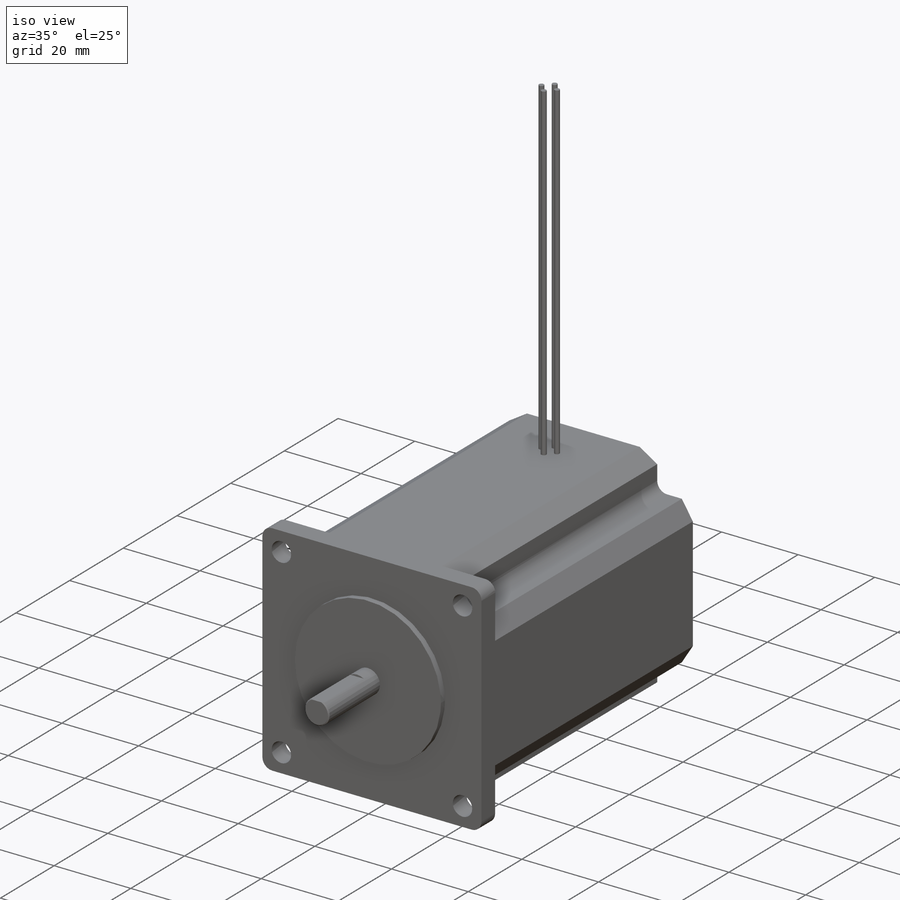
[diagram: iso view]
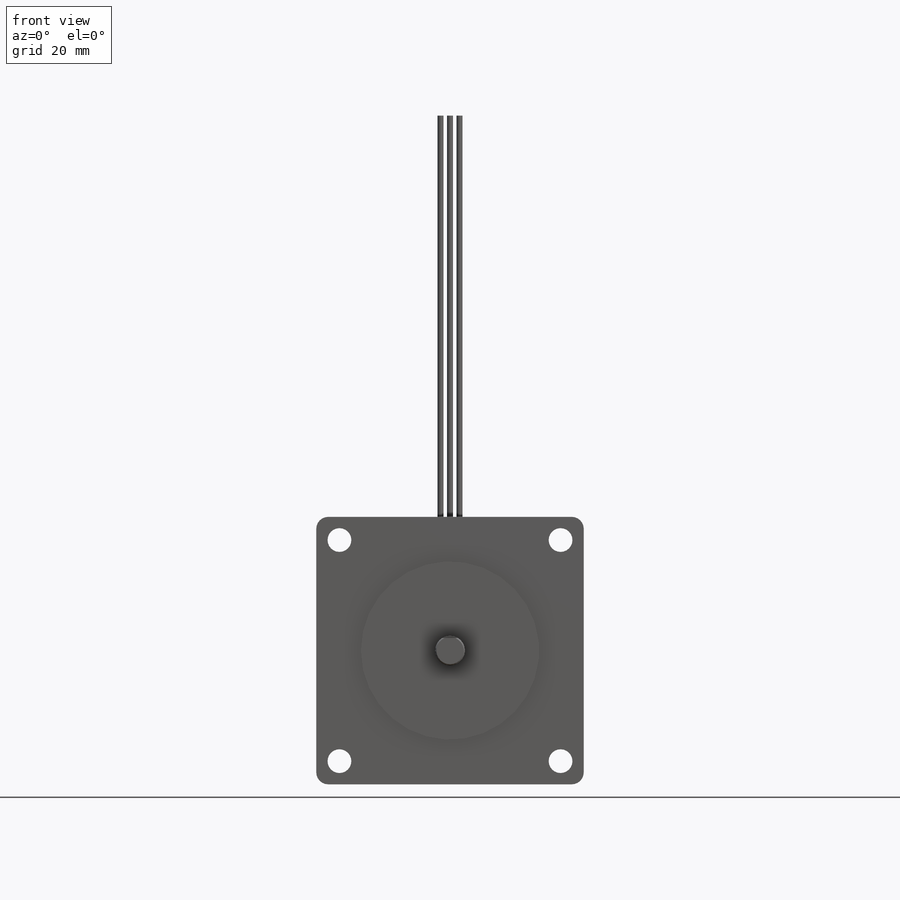
[diagram: front view]
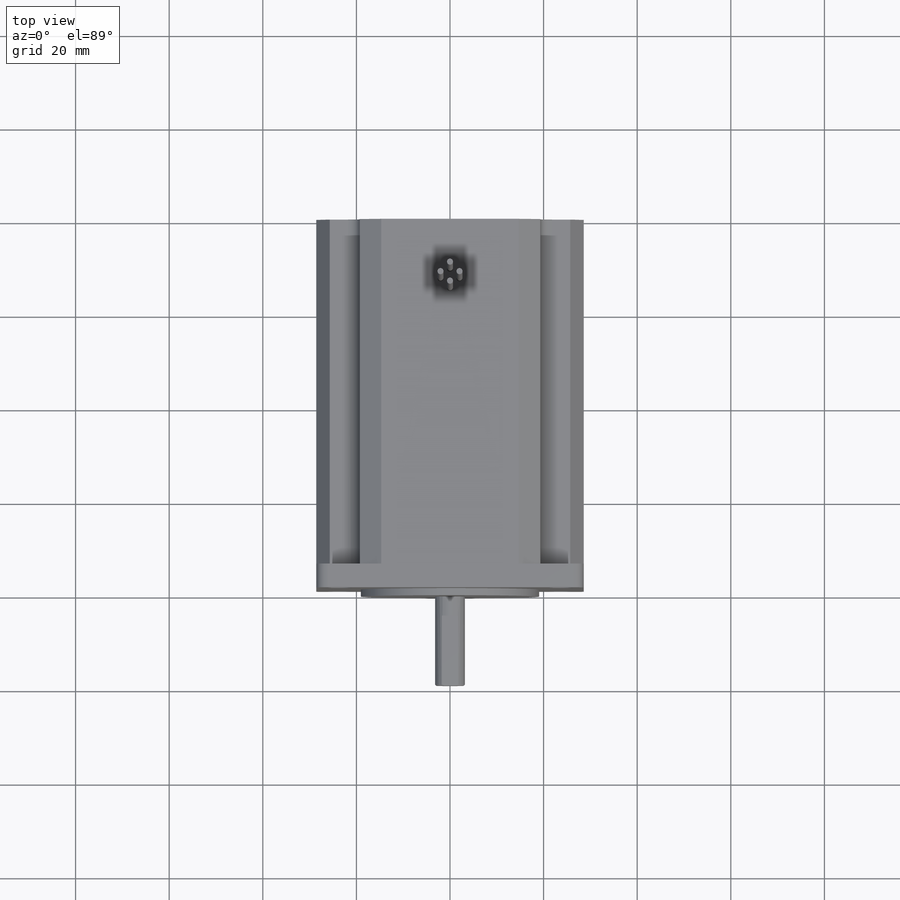
[diagram: top view]
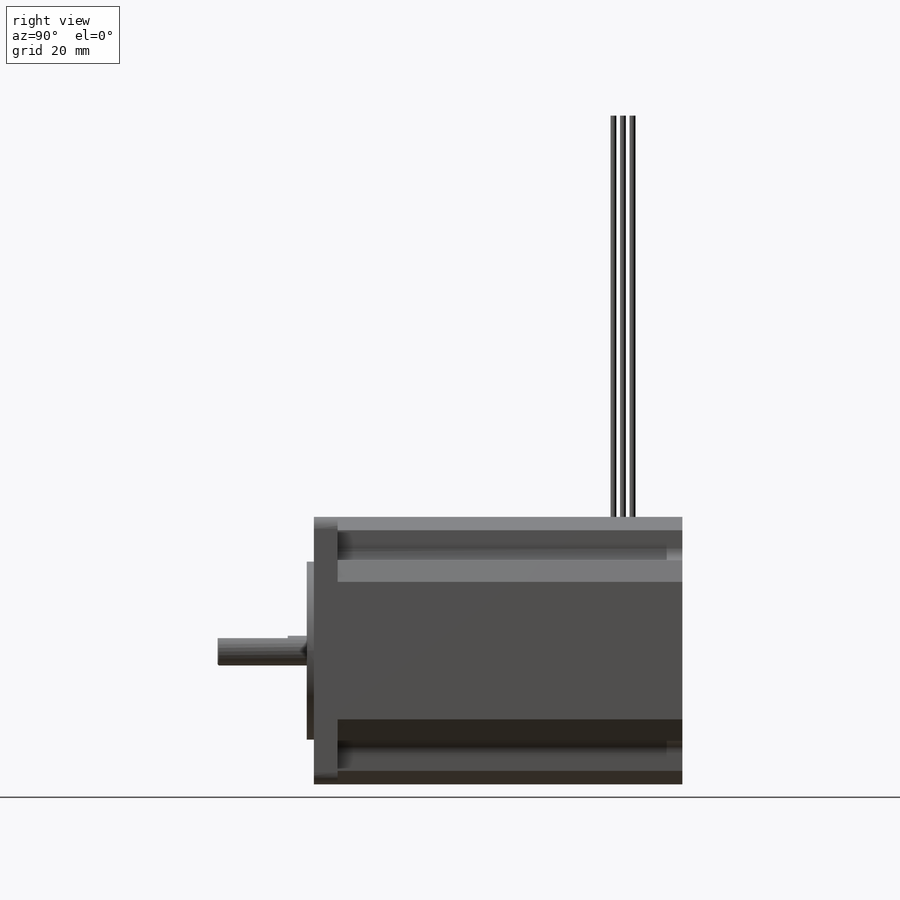
[diagram: right view]
SOLIDWORKS PART (.sldprt)
format: sldprt  version: not decoded by parser v0  size: 432,128 bytes
history: native  units: mm
features: sketch x24, cut_extrude x9, fillet x8, plane x4, revolve x4, hole x4, extrude x3, material x1, chamfer x1 (+16 scaffold rows collapsed)
feature tree (74):
  scaffold x16  (default folders/planes/origin — collapsed)
  material  "Plain Carbon Steel"
  plane  "Plane1"
  sketch  "Sketch1"
  extrude  "Boss-Extrude1"  Depth=57.15mm
  sketch  "Sketch2"
  cut_extrude  "Cut-Extrude1"  Depth=73.66mm
  sketch  "Sketch3"
  cut_extrude  "Cut-Extrude2"  Depth=73.66mm
  sketch  "Sketch4"
  cut_extrude  "Cut-Extrude3"  Depth=73.66mm
  sketch  "Sketch5"
  cut_extrude  "Cut-Extrude4"  Depth=73.66mm
  sketch  "Sketch6"
  cut_extrude  "Cut-Extrude5"  Depth=73.66mm
  sketch  "Sketch7"
  cut_extrude  "Cut-Extrude6"  Depth=73.66mm
  sketch  "Sketch8"
  cut_extrude  "Cut-Extrude7"  Depth=73.66mm
  sketch  "Sketch9"
  cut_extrude  "Cut-Extrude8"  Depth=73.66mm
  sketch  "Sketch10"
  extrude  "Boss-Extrude2"  Depth=1.524mm
  sketch  "Sketch11"
  extrude  "Boss-Extrude3"  Depth=19.05mm
  sketch  "Sketch12"
  cut_extrude  "Cut-Extrude9"  Depth=14.986mm
  plane  "Plane2"
  sketch  "Sketch13"
  revolve  "Revolve1"  Angle=360deg
  sketch  "Sketch14"
  revolve  "Revolve2"  Angle=360deg
  plane  "Plane3"  Offset=2.032mm
  sketch  "Sketch15"
  revolve  "Revolve3"  Angle=360deg
  plane  "Plane4"  Offset=2.032mm
  sketch  "Sketch16"
  revolve  "Revolve4"  Angle=360deg
  hole  "Hole1"  Diameter=5.08mm Depth=25.654mm
  sketch  "Sketch18"
  sketch  "Sketch17"  dims[Diameter=5.08mm Depth=25.654mm]
  hole  "Hole2"  Diameter=5.08mm Depth=25.654mm
  sketch  "Sketch20"
  sketch  "Sketch19"  dims[Diameter=5.08mm Depth=25.654mm]
  hole  "Hole3"  Diameter=5.08mm Depth=25.654mm
  sketch  "Sketch22"
  sketch  "Sketch21"  dims[Diameter=5.08mm Depth=25.654mm]
  hole  "Hole4"  Diameter=5.08mm Depth=25.654mm
  sketch  "Sketch24"
  sketch  "Sketch23"  dims[Diameter=5.08mm Depth=25.654mm]
  chamfer  "Chamfer1"  Distance=0.254mm Angle=45deg
  fillet  "Fillet1"  Radius=2.54mm
  fillet  "Fillet2"  Radius=2.54mm
  fillet  "Fillet3"  Radius=2.54mm
  fillet  "Fillet4"  Radius=2.54mm
  fillet  "Fillet5"  Radius=2.54mm
  fillet  "Fillet6"  Radius=2.54mm
  fillet  "Fillet7"  Radius=2.54mm
  fillet  "Fillet8"  Radius=2.54mm
decode coverage: 33 of 53 modeling features carry decoded parameters
summary: Diameter pulled from absorbed wizard sketch
note: suppression state not decoded; provenance and decode notes live in map.json
